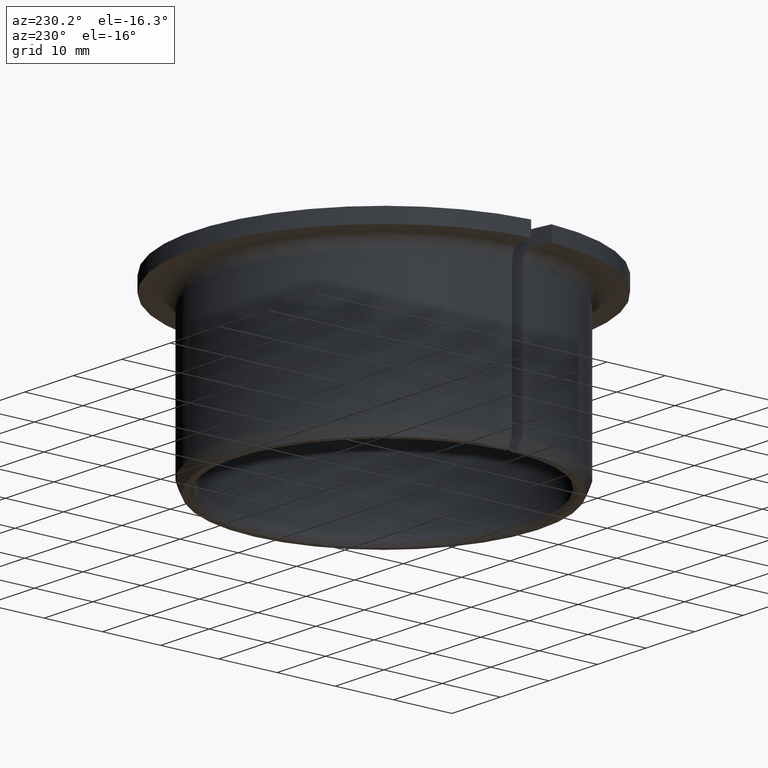
[diagram: clean part render]
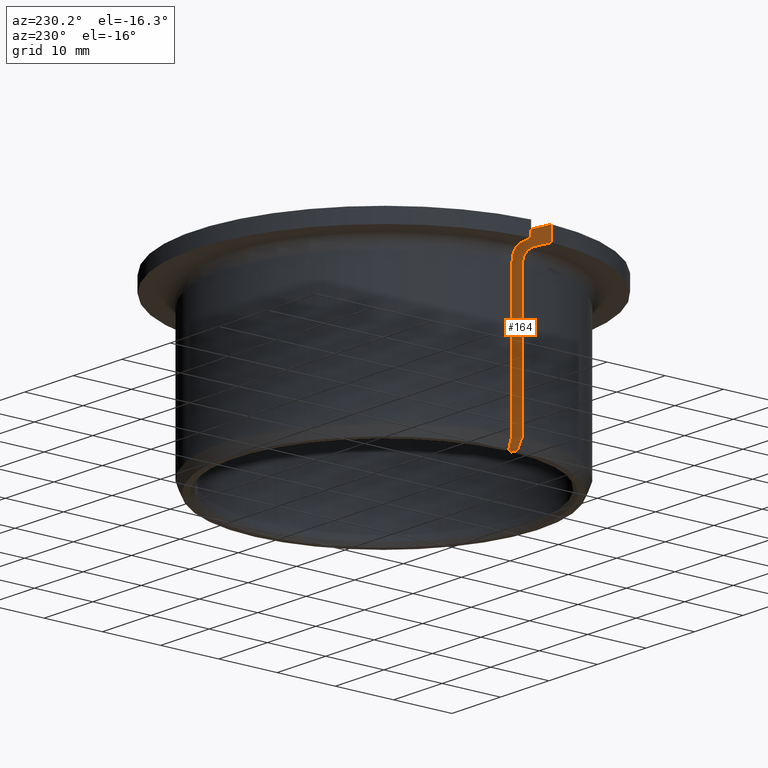
[diagram: same view with one face highlighted and labeled with its STEP entity id]
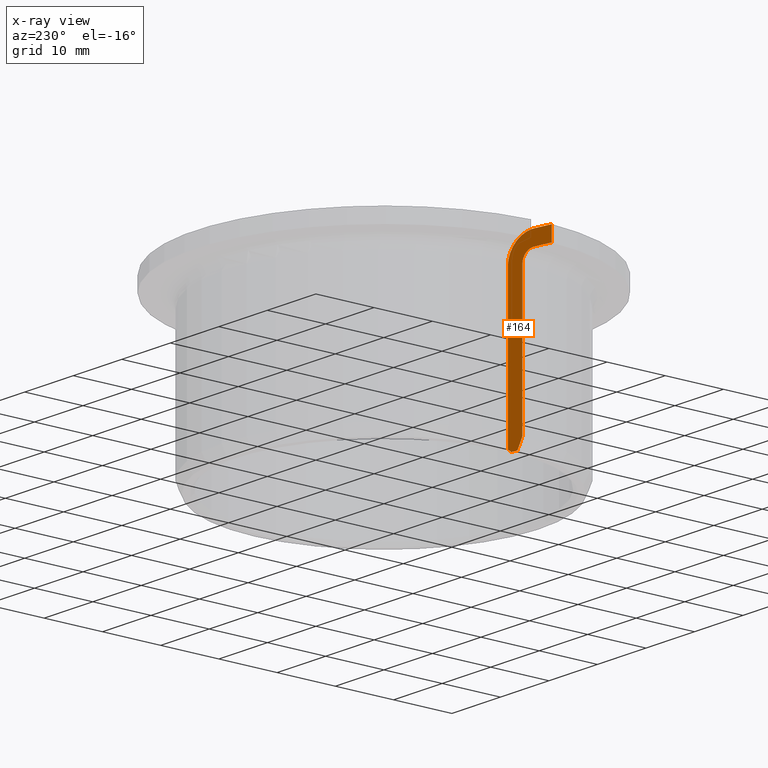
[diagram: x-ray of the same camera — body ghosted, the highlighted face saturated]
A machine part, auxiliary view. The second image highlights one B-rep face of the part: STEP entity #164.
The next image is the same camera in x-ray: the body ghosted, the highlighted face saturated — about 0% of this face is hidden behind the body in this view.
In plain terms, the highlighted planar face has unit normal (-0.1736, 0.9848, 0).
Its self-contained STEP definition (entity closure, byte-faithful):
#164=ADVANCED_FACE('',(#189),#190,.T.);
#189=FACE_OUTER_BOUND('',#214,.T.);
#190=PLANE('',#215);
#214=EDGE_LOOP('',(#299,#300,#301,#302,#303,#304,#305,#306,#307,#308));
#215=AXIS2_PLACEMENT_3D('',#309,#310,#311);
#299=ORIENTED_EDGE('',*,*,#338,.F.);
#300=ORIENTED_EDGE('',*,*,#323,.F.);
#301=ORIENTED_EDGE('',*,*,#340,.T.);
#302=ORIENTED_EDGE('',*,*,#341,.F.);
#303=ORIENTED_EDGE('',*,*,#336,.F.);
#304=ORIENTED_EDGE('',*,*,#329,.F.);
#305=ORIENTED_EDGE('',*,*,#332,.F.);
#306=ORIENTED_EDGE('',*,*,#334,.F.);
#307=ORIENTED_EDGE('',*,*,#335,.T.);
#308=ORIENTED_EDGE('',*,*,#326,.F.);
#309=CARTESIAN_POINT('',(0.0117904414431837,-0.00188838412504393,-4.01077011488349E-019));
#310=DIRECTION('',(0.173648177666931,-0.984807753012208,5.41313539199184E-017));
#311=DIRECTION('',(-1.12247161504439E-017,-5.69456376158082E-017,-1.0));
#323=EDGE_CURVE('',#362,#364,#365,.T.);
#326=EDGE_CURVE('',#367,#369,#370,.T.);
#329=EDGE_CURVE('',#372,#374,#375,.T.);
#332=EDGE_CURVE('',#377,#372,#379,.T.);
#334=EDGE_CURVE('',#380,#377,#382,.T.);
#335=EDGE_CURVE('',#380,#369,#383,.T.);
#336=EDGE_CURVE('',#374,#384,#385,.T.);
#338=EDGE_CURVE('',#364,#367,#387,.F.);
#340=EDGE_CURVE('',#362,#388,#390,.T.);
#341=EDGE_CURVE('',#384,#388,#391,.T.);
#362=VERTEX_POINT('',#454);
#364=VERTEX_POINT('',#456);
#365=B_SPLINE_CURVE_WITH_KNOTS('',3,(#457,#458,#459,#460),.UNSPECIFIED.,.F.,.F.,(4,4),(2.84524043189477E-007,0.000853980360327697),.UNSPECIFIED.);
#367=VERTEX_POINT('',#462);
#369=VERTEX_POINT('',#464);
#370=B_SPLINE_CURVE_WITH_KNOTS('',3,(#465,#466,#467,#468,#469,#470,#471,#472,#473,#474,#475,#476,#477,#478,#479,#480,#481,#482),.UNSPECIFIED.,.F.,.F.,(4,2,2,2,2,2,2,2,4),(1.97145843283766E-007,0.000883456158711329,0.00176671517157937,0.00264997418444742,0.00353323319731546,0.00441649221018351,0.00529975122305155,0.0061830102359196,0.00706626924878764),.UNSPECIFIED.);
#372=VERTEX_POINT('',#484);
#374=VERTEX_POINT('',#486);
#375=B_SPLINE_CURVE_WITH_KNOTS('',3,(#487,#488,#489,#490,#491,#492,#493,#494,#495,#496,#497,#498,#499,#500),.UNSPECIFIED.,.F.,.F.,(4,2,2,2,2,2,4),(2.58992910416059E-005,0.000418320864793748,0.000810742438545891,0.00120316401229803,0.00159558558605018,0.00238042873355447,0.00316527188105876),.UNSPECIFIED.);
#377=VERTEX_POINT('',#502);
#379=LINE('',#504,#505);
#380=VERTEX_POINT('',#506);
#382=LINE('',#508,#509);
#383=LINE('',#510,#511);
#384=VERTEX_POINT('',#512);
#385=LINE('',#513,#514);
#387=LINE('',#516,#517);
#388=VERTEX_POINT('',#518);
#390=LINE('',#520,#521);
#391=B_SPLINE_CURVE_WITH_KNOTS('',3,(#522,#523,#524,#525),.UNSPECIFIED.,.F.,.F.,(4,4),(2.21081199488738E-007,0.00199006918765296),.UNSPECIFIED.);
#454=CARTESIAN_POINT('',(0.0255941855370488,0.000545588393499619,5.77282805935002E-019));
#456=CARTESIAN_POINT('',(0.0249961253366833,0.000440134244087273,0.0006));
#457=CARTESIAN_POINT('',(0.0255941855370488,0.000545588393499619,3.20893197548333E-018));
#458=CARTESIAN_POINT('',(0.0253948603326049,0.000510441982020928,0.000200028974176696));
#459=CARTESIAN_POINT('',(0.0251955076132115,0.000475290718914266,0.000400029682300631));
#460=CARTESIAN_POINT('',(0.0249961253366833,0.000440134244087271,0.000600000000000009));
#462=CARTESIAN_POINT('',(0.0249961253366833,0.000440134244087276,0.0255));
#464=CARTESIAN_POINT('',(0.0294743561882176,0.0012297671690538,0.03));
#465=CARTESIAN_POINT('',(0.0249961253366833,0.000440134244087275,0.0255));
#466=CARTESIAN_POINT('',(0.0249961253366833,0.000440134244087275,0.0257986809510872));
#467=CARTESIAN_POINT('',(0.0250254814044072,0.000445310510874496,0.0260922719484812));
#468=CARTESIAN_POINT('',(0.025140410723475,0.000465575650700597,0.0266697066275152));
#469=CARTESIAN_POINT('',(0.0252274380150683,0.000480920910266492,0.026956608503076));
#470=CARTESIAN_POINT('',(0.0254539441326911,0.000520860050098904,0.0275024670485008));
#471=CARTESIAN_POINT('',(0.0255924381755398,0.000545280286520531,0.0277611962739501));
#472=CARTESIAN_POINT('',(0.0259193326327563,0.000602920599171847,0.0282505784488508));
#473=CARTESIAN_POINT('',(0.026109038331736,0.000636370832296122,0.0284815638730827));
#474=CARTESIAN_POINT('',(0.0265227392147246,0.000709317459909936,0.0288953099365448));
#475=CARTESIAN_POINT('',(0.0267483307430122,0.000749095332966302,0.0290809402131838));
#476=CARTESIAN_POINT('',(0.0272378952290104,0.000835418760644455,0.029408695962589));
#477=CARTESIAN_POINT('',(0.0274968805003529,0.000881084851588234,0.0295470944890517));
#478=CARTESIAN_POINT('',(0.0280336013999996,0.000975723227306066,0.0297701667025636));
#479=CARTESIAN_POINT('',(0.0283148057081225,0.00102530713391959,0.0298561268315315));
#480=CARTESIAN_POINT('',(0.0288898179773684,0.00112669731122604,0.0299711198336753));
#481=CARTESIAN_POINT('',(0.0291804896973667,0.00117795057799069,0.03));
#482=CARTESIAN_POINT('',(0.0294743561882176,0.00122976716905381,0.03));
#484=CARTESIAN_POINT('',(0.0294743561882176,0.0012297671690538,0.0275));
#486=CARTESIAN_POINT('',(0.0274859433915308,0.000879156344211942,0.0255));
#487=CARTESIAN_POINT('',(0.0294743561882175,0.0012297671690538,0.0275));
#488=CARTESIAN_POINT('',(0.0293439611733806,0.00120677500978817,0.0275));
#489=CARTESIAN_POINT('',(0.0292155423733198,0.00118413131050725,0.027487206640504));
#490=CARTESIAN_POINT('',(0.0289625250162748,0.00113951752387265,0.0274368889339557));
#491=CARTESIAN_POINT('',(0.0288366001290207,0.0011173135687071,0.0273987259786046));
#492=CARTESIAN_POINT('',(0.0285967830069188,0.00107502733964467,0.0272992488605894));
#493=CARTESIAN_POINT('',(0.0284828105107184,0.00105493091350585,0.027238298092113));
#494=CARTESIAN_POINT('',(0.0282667278696323,0.00101682971381963,0.0270939906059196));
#495=CARTESIAN_POINT('',(0.0281643278464184,0.00099877382690185,0.0270099469456205));
#496=CARTESIAN_POINT('',(0.027888623850312,0.000950159773699141,0.0267342068730736));
#497=CARTESIAN_POINT('',(0.0277394485180011,0.00092385613775658,0.0265112309057951));
#498=CARTESIAN_POINT('',(0.0275393292782336,0.000888569716426706,0.0260291241136968));
#499=CARTESIAN_POINT('',(0.0274859433915291,0.000879156344211658,0.0257654388684037));
#500=CARTESIAN_POINT('',(0.0274859433915291,0.000879156344211654,0.0255000000000002));
#502=CARTESIAN_POINT('',(0.0324525853097394,0.00175490931790978,0.0275));
#504=CARTESIAN_POINT('',(0.0292889241727507,0.00119707050163984,0.0275));
#505=VECTOR('',#553,1.0);
#506=CARTESIAN_POINT('',(0.0324525853097394,0.00175490931790978,0.03));
#508=CARTESIAN_POINT('',(0.0324525853097394,0.00175490931790978,-1.31566761279091E-019));
#509=VECTOR('',#557,1.0);
#510=CARTESIAN_POINT('',(0.0372721162951831,0.00260472266500396,0.03));
#511=VECTOR('',#558,1.0);
#512=CARTESIAN_POINT('',(0.0274859433915308,0.00087915634421194,0.0018));
#513=CARTESIAN_POINT('',(0.0274859433915308,0.000879156344211941,-7.79423574749495E-020));
#514=VECTOR('',#559,1.0);
#516=CARTESIAN_POINT('',(0.0249961253366833,0.000440134244087274,-5.10600069913184E-020));
#517=VECTOR('',#563,1.0);
#518=CARTESIAN_POINT('',(0.0266505991252698,0.000731862611890009,-4.48136602533361E-020));
#520=CARTESIAN_POINT('',(0.0225,0.0,6.43083039248804E-019));
#521=VECTOR('',#567,1.0);
#522=CARTESIAN_POINT('',(0.0274859433915307,0.000879156344211941,0.00180000000000001));
#523=CARTESIAN_POINT('',(0.0272075692244131,0.000830071467816857,0.0011999646335725));
#524=CARTESIAN_POINT('',(0.0269291234994986,0.000780973973851505,0.000599963490605589));
#525=CARTESIAN_POINT('',(0.0266505991252697,0.000731862611890011,8.33856348676827E-018));
#553=DIRECTION('',(-0.984807753012208,-0.173648177666931,1.06328842478789E-017));
#557=DIRECTION('',(0.0,-6.12323399573677E-017,-1.0));
#558=DIRECTION('',(-0.984807753012208,-0.173648177666931,2.0942693688385E-017));
#559=DIRECTION('',(0.0,-6.12323399573677E-017,-1.0));
#563=DIRECTION('',(0.0,-6.12323399573677E-017,-1.0));
#567=DIRECTION('',(0.984807753012208,0.173648177666931,-2.0942693688385E-017));